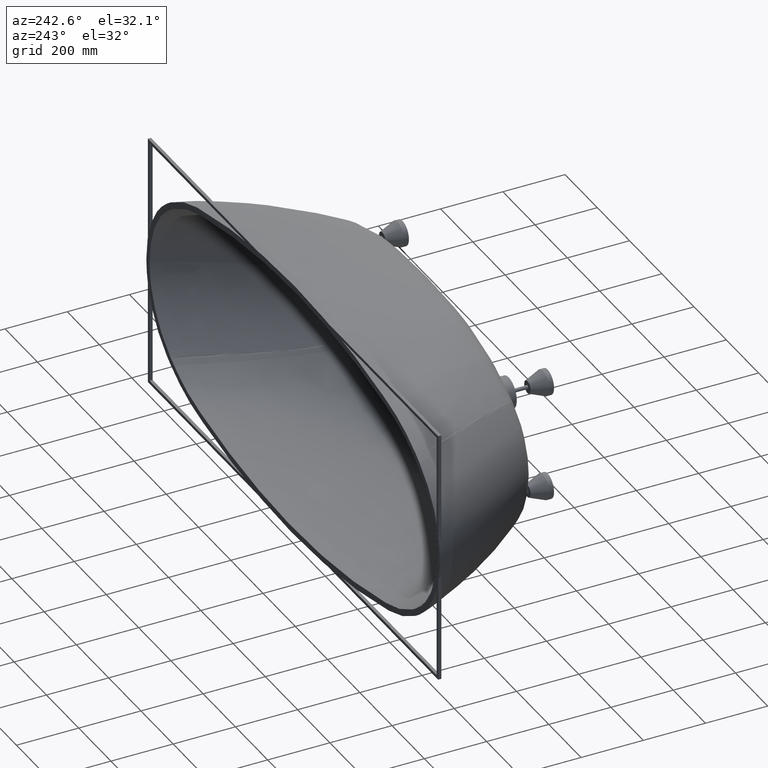
[diagram: clean part render]
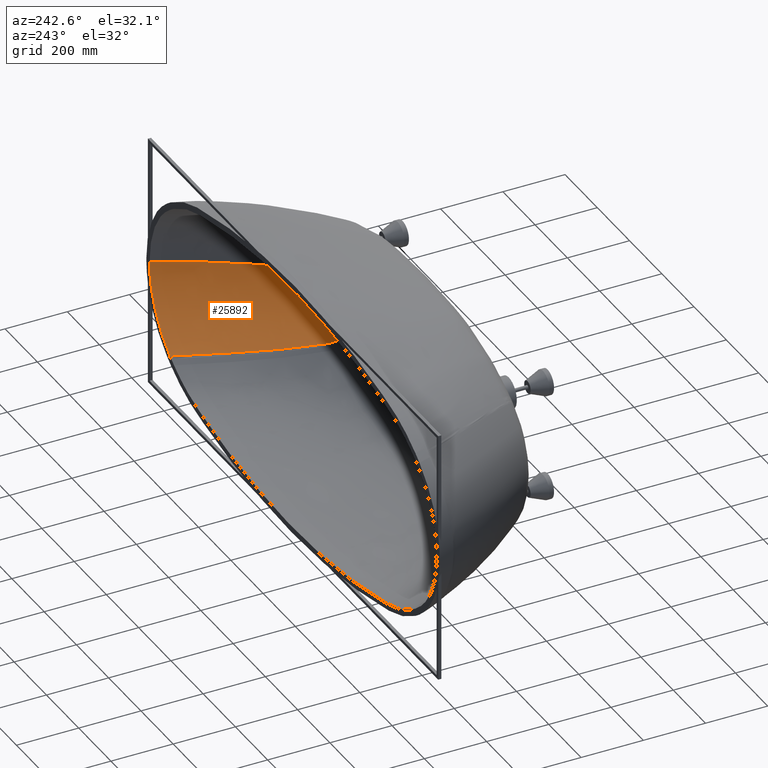
[diagram: same view with one face highlighted and labeled with its STEP entity id]
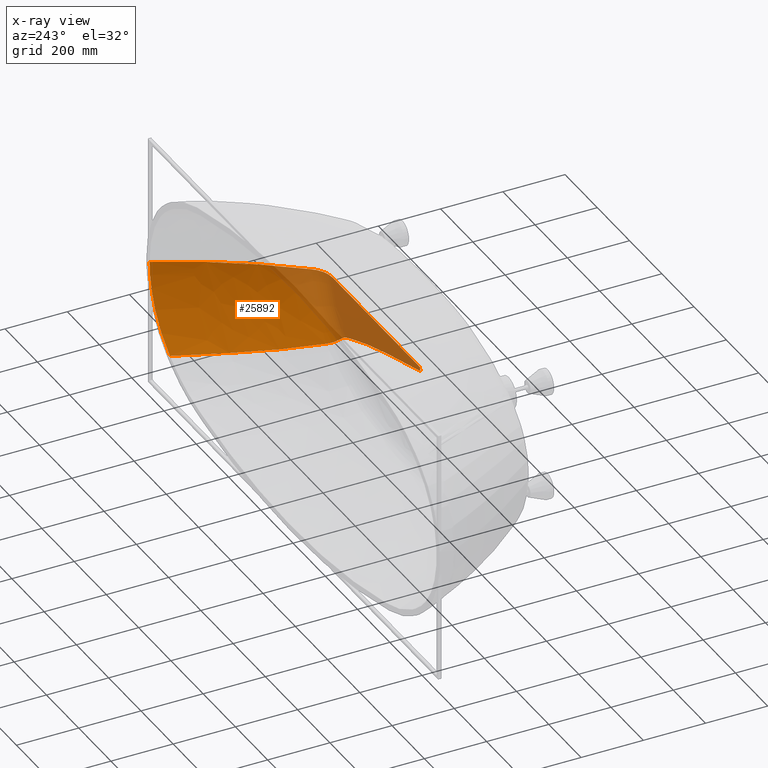
[diagram: x-ray of the same camera — body ghosted, the highlighted face saturated]
A machine part, auxiliary view. The second image highlights one B-rep face of the part: STEP entity #25892.
The next image is the same camera in x-ray: the body ghosted, the highlighted face saturated — about 25% of this face is hidden behind the body in this view.
In plain terms, the highlighted face is a freeform B-spline surface patch.
Its self-contained STEP definition (entity closure, byte-faithful):
#550 = CARTESIAN_POINT ( 'NONE',  ( 889.9999999999997726, 0.0000000000000000000, -7.813008401131620317 ) ) ;
#1199 = VERTEX_POINT ( 'NONE', #22775 ) ;
#1250 = CARTESIAN_POINT ( 'NONE',  ( 742.1609534083117978, -260.5229574180724512, -5.885049392251318068E-13 ) ) ;
#2315 = CARTESIAN_POINT ( 'NONE',  ( 22.46695528836873024, -424.9999999999999432, -1.194720606403177898 ) ) ;
#2352 = CARTESIAN_POINT ( 'NONE',  ( 604.6927582350691637, -419.6823909941625743, -2.745199900733297227E-13 ) ) ;
#2723 = CARTESIAN_POINT ( 'NONE',  ( 568.5184165091095565, -393.5598942334727894, -173.1428447770382775 ) ) ;
#4155 = CARTESIAN_POINT ( 'NONE',  ( 607.0794513948219446, -418.1109891597318438, -25.74454342284295194 ) ) ;
#4499 = CARTESIAN_POINT ( 'NONE',  ( 585.8839780074097234, -422.3329787176047603, -75.71974791608008104 ) ) ;
#5095 = CARTESIAN_POINT ( 'NONE',  ( 731.6243408592702053, -211.3113990529393220, -161.6191730751773719 ) ) ;
#5354 = CARTESIAN_POINT ( 'NONE',  ( 544.5121389570906558, -399.2590660802700313, -188.1106429836071356 ) ) ;
#5372 = CARTESIAN_POINT ( 'NONE',  ( 581.4375912778594966, -423.3838728085763705, -74.54260042421208254 ) ) ;
#6083 = CARTESIAN_POINT ( 'NONE',  ( 610.8382169708231686, -416.3741980403781895, -26.14063740771212352 ) ) ;
#6245 = CARTESIAN_POINT ( 'NONE',  ( 576.6412992635131332, -424.2276511171820061, -73.39429850229383590 ) ) ;
#6863 = CARTESIAN_POINT ( 'NONE',  ( 633.3468204824233680, -401.8672458092840429, -6.130813395000302535 ) ) ;
#7107 = CARTESIAN_POINT ( 'NONE',  ( 571.3360827767069168, -424.8210599999069359, -72.27558075873081123 ) ) ;
#7802 = CARTESIAN_POINT ( 'NONE',  ( 605.0999738649830988, -414.3860099885868635, -81.82765698950363742 ) ) ;
#7971 = CARTESIAN_POINT ( 'NONE',  ( 567.2880191858342869, -425.0000000000004547, -71.54847343157086925 ) ) ;
#8446 = CARTESIAN_POINT ( 'NONE',  ( 601.8286350277775227, -419.6815136360526139, -34.77230389997709636 ) ) ;
#8843 = CARTESIAN_POINT ( 'NONE',  ( 522.9144527306659711, -425.0000000000004547, -64.53291378857095140 ) ) ;
#9106 = CARTESIAN_POINT ( 'NONE',  ( 754.6629436554150061, -19.22118092676585022, -245.4380052979094557 ) ) ;
#9354 = CARTESIAN_POINT ( 'NONE',  ( 603.6992884566662951, -419.6820850897966011, -20.59518077207890485 ) ) ;
#9721 = CARTESIAN_POINT ( 'NONE',  ( 433.1755720916362975, -424.9999999999999432, -51.42779378559569636 ) ) ;
#9977 = CARTESIAN_POINT ( 'NONE',  ( 533.0658169171165355, -405.6264293052607854, -188.6186647234172256 ) ) ;
#10351 = CARTESIAN_POINT ( 'NONE',  ( 30.89896369505317608, -425.0000000000003411, -10.06399281711044047 ) ) ;
#10499 = CARTESIAN_POINT ( 'NONE',  ( 880.5734079690547560, -20.39839011936409108, 9.367506770274758310E-14 ) ) ;
#10595 = CARTESIAN_POINT ( 'NONE',  ( 288.1053347021986610, -425.0000000000001137, -32.79070458012962064 ) ) ;
#10858 = CARTESIAN_POINT ( 'NONE',  ( 454.1875000873624799, -425.0000000000001137, -139.3218411006128292 ) ) ;
#11013 = CARTESIAN_POINT ( 'NONE',  ( 535.1876299354520370, -421.1369254506012680, -150.5246223636109733 ) ) ;
#11387 = CARTESIAN_POINT ( 'NONE',  ( 626.5407800831256964, -407.6346563283105411, -4.397524011601205984E-13 ) ) ;
#11407 = CARTESIAN_POINT ( 'NONE',  ( 818.7503130136948357, -112.9188660872581522, -108.7606082393227922 ) ) ;
#11485 = CARTESIAN_POINT ( 'NONE',  ( 146.6610263868294055, -424.9999999999997726, -16.34263512884311709 ) ) ;
#12091 = CARTESIAN_POINT ( 'NONE',  ( 626.2563093234422240, -407.6281259592695392, -13.49476319090799947 ) ) ;
#12271 = CARTESIAN_POINT ( 'NONE',  ( 532.0358869680229645, -425.0000000000000568, 3.226864118656051386E-14 ) ) ;
#12367 = CARTESIAN_POINT ( 'NONE',  ( 61.93094572838794676, -425.0000000000000568, -7.614410849507206258 ) ) ;
#13184 = CARTESIAN_POINT ( 'NONE',  ( 612.3676016354260128, -416.3819779217574251, -3.230922474006803213E-13 ) ) ;
#13239 = CARTESIAN_POINT ( 'NONE',  ( 22.26716857177912345, -424.9999999999999432, -3.739079911027631820 ) ) ;
#13488 = CARTESIAN_POINT ( 'NONE',  ( 742.1609534083116841, -260.5229574180740997, -7.192766674008138850 ) ) ;
#13858 = CARTESIAN_POINT ( 'NONE',  ( 887.8996988289592309, 0.0000000000000000000, -35.81240038679592885 ) ) ;
#14554 = CARTESIAN_POINT ( 'NONE',  ( 741.8258980714191466, -260.5053571335968741, -16.14031569760735607 ) ) ;
#14791 = CARTESIAN_POINT ( 'NONE',  ( 541.3327662777909381, -411.4229621947719124, -172.8410498653929039 ) ) ;
#14817 = CARTESIAN_POINT ( 'NONE',  ( 517.3643112907934665, -421.1503002250229883, -165.3099669590468181 ) ) ;
#17464 = CARTESIAN_POINT ( 'NONE',  ( 608.5977907286596746, -418.1144126925555042, -5.621836656254521003 ) ) ;
#17807 = CARTESIAN_POINT ( 'NONE',  ( 521.6559440611529226, -422.4097920189624347, -156.5746591771366809 ) ) ;
#18193 = CARTESIAN_POINT ( 'NONE',  ( 877.7442128324414625, -20.36984941273554739, -41.47086964043676716 ) ) ;
#18534 = CARTESIAN_POINT ( 'NONE',  ( 604.4202248330600469, -419.6823068440052111, -12.41633372556329462 ) ) ;
#18688 = CARTESIAN_POINT ( 'NONE',  ( 517.7807017661456257, -423.4557901567945351, -153.9407233803571842 ) ) ;
#19549 = CARTESIAN_POINT ( 'NONE',  ( 513.5867296306764729, -424.2741099264814579, -151.3739413454840133 ) ) ;
#20255 = CARTESIAN_POINT ( 'NONE',  ( 609.4604288050649075, -416.3672394330349675, -35.86550624852029756 ) ) ;
#20419 = CARTESIAN_POINT ( 'NONE',  ( 508.9267604374355756, -424.8357574338874088, -148.8760096825899666 ) ) ;
#20790 = CARTESIAN_POINT ( 'NONE',  ( 756.5920398574542105, -56.66415962880429902, -229.7136861765593778 ) ) ;
#21037 = CARTESIAN_POINT ( 'NONE',  ( 547.3554797882446792, -395.6177623110040145, -189.6644919033969643 ) ) ;
#21284 = CARTESIAN_POINT ( 'NONE',  ( 505.3501641792956889, -425.0000000000006821, -147.2542387853335697 ) ) ;
#21873 = CARTESIAN_POINT ( 'NONE',  ( 835.1985013818906509, -19.95022826922035009, -170.3465702110891584 ) ) ;
#22160 = CARTESIAN_POINT ( 'NONE',  ( 465.9553905360119188, -425.0000000000006821, -131.6146692688825226 ) ) ;
#22775 = CARTESIAN_POINT ( 'NONE',  ( 30.18770409776147901, -425.0000000000000000, -11.99474317903256626 ) ) ;
#23029 = CARTESIAN_POINT ( 'NONE',  ( 386.9772987131114519, -425.0000000000001137, -104.1604783138931793 ) ) ;
#23086 = CARTESIAN_POINT ( 'NONE',  ( 582.5155249339836701, -414.1922932193824067, -125.9482060397161831 ) ) ;
#23288 = CARTESIAN_POINT ( 'NONE',  ( 541.4533807291783205, -395.4375403903129609, -194.1291863807538220 ) ) ;
#23907 = CARTESIAN_POINT ( 'NONE',  ( 259.5658295238316100, -425.0000000000003979, -67.72177198379964125 ) ) ;
#24097 = CARTESIAN_POINT ( 'NONE',  ( 625.3435831102245857, -398.0961087535347360, -87.37890494570211786 ) ) ;
#24169 = CARTESIAN_POINT ( 'NONE',  ( 500.5312032346741375, -424.2833750417757983, -160.5738072706150774 ) ) ;
#24550 = CARTESIAN_POINT ( 'NONE',  ( 32.30973494028206972, -425.0000000000001137, -4.035617031001397237 ) ) ;
#24700 = CARTESIAN_POINT ( 'NONE',  ( 636.7542890299514511, -398.4740128357382218, -5.251875323519783478E-13 ) ) ;
#24720 = CARTESIAN_POINT ( 'NONE',  ( 830.1899798702447697, -113.3991055052842825, -40.85065626764622237 ) ) ;
#24798 = CARTESIAN_POINT ( 'NONE',  ( 134.2924447026792336, -424.9999999999998295, -35.89073695144139720 ) ) ;
#25581 = CARTESIAN_POINT ( 'NONE',  ( 586.8775769993812901, -424.2197302004688595, -1.140580685454750665E-13 ) ) ;
#25679 = CARTESIAN_POINT ( 'NONE',  ( 57.51238672651712136, -425.0000000000001137, -17.64922770947787711 ) ) ;
#25892 = ADVANCED_FACE ( 'NONE', ( #147237 ), #128852, .T. ) ;
#26183 = VERTEX_POINT ( 'NONE', #97043 ) ;
#26480 = CARTESIAN_POINT ( 'NONE',  ( 803.5349000565435063, -164.6850933728977679, -2.550043509685906429E-13 ) ) ;
#26563 = CARTESIAN_POINT ( 'NONE',  ( 20.76493168872015005, -425.0000000000001137, -8.633719911346696918 ) ) ;
#26813 = CARTESIAN_POINT ( 'NONE',  ( 589.6048540223811187, -347.3832296305083105, -195.7248192990210498 ) ) ;
#26816 = CARTESIAN_POINT ( 'NONE',  ( 613.9372683676277802, -414.4617678680138511, -30.76974567980781572 ) ) ;
#27020 = CARTESIAN_POINT ( 'NONE',  ( 770.7516736604111429, -213.3718894115311571, -39.36743026726939121 ) ) ;
#27186 = CARTESIAN_POINT ( 'NONE',  ( 875.2561198878230471, 0.0000000000000000000, -110.6219516989343390 ) ) ;
#27613 = CARTESIAN_POINT ( 'NONE',  ( 541.6861517262809684, -402.6215480962127913, -186.3283079783399785 ) ) ;
#30728 = B_SPLINE_CURVE_WITH_KNOTS ( 'NONE', 3,
 ( #130708, #9106, #63226, #117391, #171572, #49907, #104057, #158223, #36598, #90717, #144912, #23288, #77412, #131581, #9977, #64098, #118274, #172452, #50776, #104936, #159108, #37481, #91598, #145793, #24169, #78293, #132464, #10858, #64983, #119158, #173330, #51671, #105837 ),
 .UNSPECIFIED., .F., .F.,
 ( 4, 1, 1, 1, 1, 1, 1, 1, 2, 1, 1, 1, 1, 1, 1, 1, 1, 1, 1, 1, 1, 1, 1, 1, 2, 1, 1, 1, 4 ),
 ( 0.0000000000000000000, 0.05994086368778128032, 0.1198817273755625606, 0.1798225910633438340, 0.2397634547511251213, 0.2997043184389063808, 0.3596451821266876681, 0.4195860458144689553, 0.4795269095022502426, 0.4853010234369131148, 0.4910751373715758761, 0.4968492513062386373, 0.5026233652409013430, 0.5083974791755642153, 0.5141715931102269765, 0.5199457070448898488, 0.5257198209795526100, 0.5314939349142153713, 0.5372680488488781325, 0.5430421627835408938, 0.5488162767182037660, 0.5545903906528666383, 0.5603645045875293995, 0.5661386185221921608, 0.5719127324568549220, 0.6789345493426411915, 0.7859563662284274610, 0.8929781831142136195, 0.9904148661195237846 ),
 .UNSPECIFIED. ) ;
#30774 = CARTESIAN_POINT ( 'NONE',  ( 520.7480526106349998, -419.6580489544126635, -168.1852738272401382 ) ) ;
#31116 = CARTESIAN_POINT ( 'NONE',  ( 600.6198215415478217, -421.0857550593216843, -2.376571162088225719E-13 ) ) ;
#31371 = CARTESIAN_POINT ( 'NONE',  ( 709.7931752842318929, -306.1392096454704301, -6.930125930304290804 ) ) ;
#31506 = CARTESIAN_POINT ( 'NONE',  ( 623.5540909002511398, -407.5665700356749994, -37.81970106279426602 ) ) ;
#31995 = CARTESIAN_POINT ( 'NONE',  ( 596.3384942679665528, -422.3198825627165434, -1.856154119295183591E-13 ) ) ;
#32858 = CARTESIAN_POINT ( 'NONE',  ( 591.7858414175602775, -423.3716113810008892, -1.361757928641793569E-13 ) ) ;
#33480 = CARTESIAN_POINT ( 'NONE',  ( 538.6477861280450270, -399.0944967764922353, -192.5343263819627566 ) ) ;
#33563 = CARTESIAN_POINT ( 'NONE',  ( 601.5289581477208003, -416.3278752998928667, -80.62157361191168548 ) ) ;
#33723 = CARTESIAN_POINT ( 'NONE',  ( 586.8775769993812901, -424.2197302004688595, -1.140580685454750665E-13 ) ) ;
#33977 = CARTESIAN_POINT ( 'NONE',  ( 772.0850604735544493, -213.4437027725822702, -27.56766390325527993 ) ) ;
#34094 = CARTESIAN_POINT ( 'NONE',  ( 803.1806998770780410, -164.6667762298227160, -16.97239111492600472 ) ) ;
#34342 = CARTESIAN_POINT ( 'NONE',  ( 627.8064169713665024, -404.8385384633936610, -32.29704374598685490 ) ) ;
#34559 = CARTESIAN_POINT ( 'NONE',  ( 32.50000000001039524, -425.0000000000002274, 5.089849255042330080E-15 ) ) ;
#34591 = CARTESIAN_POINT ( 'NONE',  ( 581.4528246274917365, -424.8185541855690417, -5.724587470723463412E-14 ) ) ;
#34962 = CARTESIAN_POINT ( 'NONE',  ( 800.8723393725767892, -164.5485269617993822, -40.22250256330844564 ) ) ;
#35459 = CARTESIAN_POINT ( 'NONE',  ( 577.3180290801075216, -425.0000000000000568, -3.465067594662047174E-14 ) ) ;
#35515 = CARTESIAN_POINT ( 'NONE',  ( 618.5746015112140412, -412.3858850174781878, -21.85430122351743165 ) ) ;
#36334 = CARTESIAN_POINT ( 'NONE',  ( 532.0358869680229645, -425.0000000000000568, 3.226864118656051386E-14 ) ) ;
#36392 = CARTESIAN_POINT ( 'NONE',  ( 619.3158370787027707, -412.3956778873180156, -13.17243776808596856 ) ) ;
#36598 = CARTESIAN_POINT ( 'NONE',  ( 574.1802162508204219, -346.8158871225878102, -208.1740881903860441 ) ) ;
#37141 = CARTESIAN_POINT ( 'NONE',  ( 816.9430219003472757, -58.11417081261243567, -169.5644468792151258 ) ) ;
#37217 = CARTESIAN_POINT ( 'NONE',  ( 440.4492248278466491, -424.9999999999996021, 5.963111948670274387E-14 ) ) ;
#37481 = CARTESIAN_POINT ( 'NONE',  ( 511.8702590839548066, -421.1543728557786608, -169.0794472003104261 ) ) ;
#37862 = CARTESIAN_POINT ( 'NONE',  ( 31.88218392002220014, -425.0000000000000568, -6.236227272414957667 ) ) ;
#37879 = B_SPLINE_CURVE_WITH_KNOTS ( 'NONE', 3,
 ( #77790, #131954, #10351, #64476, #118658, #172830, #51157, #105323, #159491, #37862, #91982, #146178, #24550, #78675, #132849 ),
 .UNSPECIFIED., .F., .F.,
 ( 4, 2, 2, 1, 1, 1, 2, 2, 4 ),
 ( 0.0000000000000000000, 0.2499999999999999445, 0.3750000000000002220, 0.4374999999999999445, 0.4687500000000001110, 0.4843750000000002776, 0.4921875000000003886, 0.5000000000000004441, 1.000000000000000000 ),
 .UNSPECIFIED. ) ;
#38010 = CARTESIAN_POINT ( 'NONE',  ( 676.0169740054551539, -350.7131320821338250, -6.899862625697750218E-13 ) ) ;
#38029 = CARTESIAN_POINT ( 'NONE',  ( 799.8032330269845716, -164.4941169738871167, -47.58952087079030946 ) ) ;
#38107 = CARTESIAN_POINT ( 'NONE',  ( 292.5380542394628378, -424.9999999999998295, 5.898059818321144121E-14 ) ) ;
#38905 = CARTESIAN_POINT ( 'NONE',  ( 600.6198215415478217, -421.0857550593216843, -2.376571162088225719E-13 ) ) ;
#38923 = CARTESIAN_POINT ( 'NONE',  ( 889.6218232531010699, 0.0000000000000000000, -17.53117531114953209 ) ) ;
#39003 = CARTESIAN_POINT ( 'NONE',  ( 148.5769081895095667, -424.9999999999997726, 2.103352214621878602E-14 ) ) ;
#39253 = CARTESIAN_POINT ( 'NONE',  ( 511.8702590839548066, -421.1543728557786608, -169.0794472003104261 ) ) ;
#39607 = CARTESIAN_POINT ( 'NONE',  ( 611.9995744146991683, -409.9292747576186002, -84.05642408873781335 ) ) ;
#39705 = CARTESIAN_POINT ( 'NONE',  ( 615.7480350061266563, -414.4776379743756252, -12.99190751760226448 ) ) ;
#39805 = CARTESIAN_POINT ( 'NONE',  ( 847.2375928071501221, -58.89849752313223519, -109.9278137956628996 ) ) ;
#39882 = CARTESIAN_POINT ( 'NONE',  ( 62.62135983265346084, -425.0000000000001705, 6.830473686658677934E-15 ) ) ;
#40505 = CARTESIAN_POINT ( 'NONE',  ( 782.5614730565411037, 0.0000000000000000000, -231.2520088400853524 ) ) ;
#40696 = CARTESIAN_POINT ( 'NONE',  ( 518.4032822138713072, -417.9231159415956540, -175.0295410734784696 ) ) ;
#40930 = CARTESIAN_POINT ( 'NONE',  ( 634.5832855296775961, -398.4003954448822924, -32.84451259594668926 ) ) ;
#41802 = CARTESIAN_POINT ( 'NONE',  ( 601.8570230804409675, -397.3180321335764802, -134.6400680118282480 ) ) ;
#42951 = CARTESIAN_POINT ( 'NONE',  ( 660.3776879897542358, -256.4867196667782423, -201.1342560729154627 ) ) ;
#43091 = CARTESIAN_POINT ( 'NONE',  ( 626.5407800831255827, -407.6346563283111664, -6.015142029899807063 ) ) ;
#43142 = CARTESIAN_POINT ( 'NONE',  ( 22.49999999999988276, -425.0000000000000568, 4.391018798566292958E-15 ) ) ;
#43188 = CARTESIAN_POINT ( 'NONE',  ( 527.3882758105128232, -411.2565995768030689, -183.6937106233603174 ) ) ;
#43825 = CARTESIAN_POINT ( 'NONE',  ( 672.7752630593931826, -350.5810011239591404, -41.59077718536266843 ) ) ;
#44444 = CARTESIAN_POINT ( 'NONE',  ( 599.6340399345741616, -421.0865661929894941, -20.27562607281890905 ) ) ;
#44838 = CARTESIAN_POINT ( 'NONE',  ( 554.6494537494223778, -408.9533158292018697, -165.4650702254886596 ) ) ;
#45331 = CARTESIAN_POINT ( 'NONE',  ( 595.3607062282909510, -422.3211264677487407, -19.96131984355868738 ) ) ;
#45804 = CARTESIAN_POINT ( 'NONE',  ( 603.1858116232364182, -419.6819278705579563, -25.34660094286885013 ) ) ;
#45812 = CARTESIAN_POINT ( 'NONE',  ( 613.0990029953896965, -414.4544655623866447, -36.39907973715754252 ) ) ;
#46198 = CARTESIAN_POINT ( 'NONE',  ( 590.8164206007029406, -423.3727760015779040, -19.65426219543595465 ) ) ;
#46783 = CARTESIAN_POINT ( 'NONE',  ( 861.6764684313017142, -59.27943721221214446, -7.764697007903015979 ) ) ;
#46899 = CARTESIAN_POINT ( 'NONE',  ( 535.2270184974133826, -416.0105454398641314, -167.5608553019726799 ) ) ;
#47057 = CARTESIAN_POINT ( 'NONE',  ( 585.9169881405208571, -424.2204825486383584, -19.35464425425046642 ) ) ;
#47650 = CARTESIAN_POINT ( 'NONE',  ( 688.8430212571240645, -209.2013242017327457, -206.9271436486632467 ) ) ;
#47686 = CARTESIAN_POINT ( 'NONE',  ( 618.6947650433361332, -404.5961059790803915, -85.91631998307366302 ) ) ;
#47930 = CARTESIAN_POINT ( 'NONE',  ( 580.5017054015050917, -424.8187921939837679, -19.06265714580184323 ) ) ;
#48794 = CARTESIAN_POINT ( 'NONE',  ( 576.3738346605395009, -425.0000000000000000, -18.87282247907329236 ) ) ;
#49648 = CARTESIAN_POINT ( 'NONE',  ( 531.1648479860959924, -425.0000000000000000, -17.04090275063628113 ) ) ;
#49907 = CARTESIAN_POINT ( 'NONE',  ( 658.4731281993256289, -207.7315150473311007, -233.1707577283375201 ) ) ;
#50515 = CARTESIAN_POINT ( 'NONE',  ( 439.7405845900744339, -424.9999999999995453, -13.58993164141370258 ) ) ;
#50776 = CARTESIAN_POINT ( 'NONE',  ( 521.4839849449388112, -415.9472614731822659, -178.0067493062282153 ) ) ;
#51157 = CARTESIAN_POINT ( 'NONE',  ( 31.72689247702175663, -425.0000000000003411, -6.982934607847166575 ) ) ;
#51309 = CARTESIAN_POINT ( 'NONE',  ( 773.3433091981349889, -213.5120345203855265, -4.605690828718422836E-13 ) ) ;
#51328 = CARTESIAN_POINT ( 'NONE',  ( 675.9663322207704823, -208.5730157610316553, -219.2395168965364576 ) ) ;
#51407 = CARTESIAN_POINT ( 'NONE',  ( 292.1017538082996907, -424.9999999999998863, -8.640412462146304762 ) ) ;
#51671 = CARTESIAN_POINT ( 'NONE',  ( 63.31793199200877353, -425.0000000000000568, -20.90437426964390255 ) ) ;
#52022 = CARTESIAN_POINT ( 'NONE',  ( 629.9511447816461214, -404.8971911993211847, -4.601354020028480818E-13 ) ) ;
#52200 = CARTESIAN_POINT ( 'NONE',  ( 612.3676016354260128, -416.3819779217574251, -3.230922474006803213E-13 ) ) ;
#52296 = CARTESIAN_POINT ( 'NONE',  ( 148.3911079814282346, -424.9999999999997158, -4.268510152399040081 ) ) ;
#52554 = CARTESIAN_POINT ( 'NONE',  ( 740.9418886160283364, -260.4589765054832355, -26.78785623342234956 ) ) ;
#52680 = CARTESIAN_POINT ( 'NONE',  ( 533.0658169171165355, -405.6264293052607854, -188.6186647234172256 ) ) ;
#53082 = CARTESIAN_POINT ( 'NONE',  ( 69.73813508375620529, -425.0000000000001705, 8.022529115016779057E-15 ) ) ;
#53101 = CARTESIAN_POINT ( 'NONE',  ( 763.1520700604693275, 0.0000000000000000000, -245.9321533621682363 ) ) ;
#53179 = CARTESIAN_POINT ( 'NONE',  ( 62.55670424644628724, -425.0000000000000568, -1.972476568528758634 ) ) ;
#53992 = CARTESIAN_POINT ( 'NONE',  ( 523.9868883457270385, -417.9344698624695411, -171.0917854156082569 ) ) ;
#54296 = CARTESIAN_POINT ( 'NONE',  ( 616.6486798588988449, -412.3606490944637244, -36.90920604521760851 ) ) ;
#54493 = CARTESIAN_POINT ( 'NONE',  ( 640.6341684389320790, -379.5264237595847021, -89.92439708075299620 ) ) ;
#54627 = CARTESIAN_POINT ( 'NONE',  ( 711.6965103376680872, -108.7229897645688794, -241.7294018558230277 ) ) ;
#54640 = CARTESIAN_POINT ( 'NONE',  ( 620.1278482135928698, -410.0715213375021904, -37.38532890152461619 ) ) ;
#54663 = CARTESIAN_POINT ( 'NONE',  ( 889.9999999999997726, 0.0000000000000000000, 5.030698080332740574E-14 ) ) ;
#55360 = CARTESIAN_POINT ( 'NONE',  ( 771.4336053293262694, -213.4085837400958496, -33.93571396602765589 ) ) ;
#56237 = CARTESIAN_POINT ( 'NONE',  ( 649.2578428918619693, -379.8324625487778121, -39.98831966759213685 ) ) ;
#56431 = CARTESIAN_POINT ( 'NONE',  ( 22.47822624222893495, -424.9999999999999432, -0.9688558264257705055 ) ) ;
#58122 = CARTESIAN_POINT ( 'NONE',  ( 624.4094521470756263, -407.5859681098792748, -31.96849327800740070 ) ) ;
#58611 = CARTESIAN_POINT ( 'NONE',  ( 593.5205351759256018, -422.3234501815206841, -33.69645820128976510 ) ) ;
#58873 = CARTESIAN_POINT ( 'NONE',  ( 569.2269403296779728, -377.0593239307403337, -188.0236669823008810 ) ) ;
#59491 = CARTESIAN_POINT ( 'NONE',  ( 588.9925127980235402, -423.3749516056666380, -33.17528823664894588 ) ) ;
#59747 = CARTESIAN_POINT ( 'NONE',  ( 708.0103117111566462, -306.0547059743462910, -31.77138446391862558 ) ) ;
#59908 = B_SPLINE_CURVE_WITH_KNOTS ( 'NONE', 3,
 ( #132100, #10499, #64625, #118803, #172975, #51309, #105477, #159641, #38010, #92133, #146329, #24700, #78825, #132999, #11387, #65514, #119687, #173859, #52200, #106364, #160536, #38905, #93034, #147219, #25581, #79706, #133890, #12271, #66405, #120571, #174741, #53082, #107251 ),
 .UNSPECIFIED., .F., .F.,
 ( 4, 1, 1, 1, 1, 1, 1, 1, 2, 1, 1, 1, 1, 1, 1, 1, 1, 1, 1, 1, 1, 1, 1, 1, 2, 1, 1, 1, 4 ),
 ( 0.0000000000000000000, 0.05994086368778128032, 0.1198817273755625606, 0.1798225910633438340, 0.2397634547511251213, 0.2997043184389063808, 0.3596451821266876681, 0.4195860458144689553, 0.4795269095022502426, 0.4853010234369130593, 0.4910751373715758761, 0.4968492513062386373, 0.5026233652409013430, 0.5083974791755642153, 0.5141715931102269765, 0.5199457070448898488, 0.5257198209795526100, 0.5314939349142153713, 0.5372680488488781325, 0.5430421627835408938, 0.5488162767182037660, 0.5545903906528666383, 0.5603645045875293995, 0.5661386185221921608, 0.5719127324568549220, 0.6789345493426411915, 0.7859563662284274610, 0.8929781831142136195, 0.9911602972740303219 ),
 .UNSPECIFIED. ) ;
#60199 = CARTESIAN_POINT ( 'NONE',  ( 611.3595029764451283, -416.3768391215389784, -21.23929087614614986 ) ) ;
#60359 = CARTESIAN_POINT ( 'NONE',  ( 584.1102401595677520, -424.2218879950010546, -32.66674389464135686 ) ) ;
#60988 = CARTESIAN_POINT ( 'NONE',  ( 560.5921963985729235, -403.0930971710218387, -169.3265976698789075 ) ) ;
#61232 = CARTESIAN_POINT ( 'NONE',  ( 578.7133404397632148, -424.8192368126780707, -32.17114947913414369 ) ) ;
#61423 = CARTESIAN_POINT ( 'NONE',  ( 626.9455833007012870, -404.8151703846168061, -38.20900269541999705 ) ) ;
#61492 = CARTESIAN_POINT ( 'NONE',  ( 670.7826012152611383, -304.3416226646732525, -151.2420064671966884 ) ) ;
#62102 = CARTESIAN_POINT ( 'NONE',  ( 574.5988928120389119, -425.0000000000000568, -31.84893789323124835 ) ) ;
#62359 = CARTESIAN_POINT ( 'NONE',  ( 631.0451753382188826, -255.1104965486242122, -226.6659844089797957 ) ) ;
#62486 = CARTESIAN_POINT ( 'NONE',  ( 592.3164081755080588, -406.8701271827550272, -130.9831180693238366 ) ) ;
#62969 = CARTESIAN_POINT ( 'NONE',  ( 529.5314941390948889, -425.0000000000000568, -28.73955555964084141 ) ) ;
#63226 = CARTESIAN_POINT ( 'NONE',  ( 737.6175872662014399, -56.21857355995337713, -244.2741881949994251 ) ) ;
#63815 = CARTESIAN_POINT ( 'NONE',  ( 555.8702810382476400, -395.8795757025147282, -182.5575216263245579 ) ) ;
#63837 = CARTESIAN_POINT ( 'NONE',  ( 438.4161668671581538, -424.9999999999996021, -22.90633761930751078 ) ) ;
#64098 = CARTESIAN_POINT ( 'NONE',  ( 530.2474019291332752, -408.5538852651012007, -186.2756924335419626 ) ) ;
#64215 = CARTESIAN_POINT ( 'NONE',  ( 703.3683658739562361, -159.8721957139893277, -223.9042928840680418 ) ) ;
#64476 = CARTESIAN_POINT ( 'NONE',  ( 31.32898771742711475, -425.0000000000002274, -8.591324550392180015 ) ) ;
#64625 = CARTESIAN_POINT ( 'NONE',  ( 861.6764684313014868, -59.27943721221124207, 4.119968255444916849E-14 ) ) ;
#64720 = CARTESIAN_POINT ( 'NONE',  ( 291.2873608685948170, -424.9999999999999432, -14.57717926659432628 ) ) ;
#64983 = CARTESIAN_POINT ( 'NONE',  ( 377.4490720477825221, -424.9999999999997158, -110.1344720584576606 ) ) ;
#65514 = CARTESIAN_POINT ( 'NONE',  ( 623.0953213378229520, -410.1247804707803652, -4.237062090073351328E-13 ) ) ;
#65613 = CARTESIAN_POINT ( 'NONE',  ( 148.0430040173553436, -424.9999999999997158, -7.227054756478983322 ) ) ;
#65871 = CARTESIAN_POINT ( 'NONE',  ( 631.1336862456000745, -302.6180100368005128, -193.7858482065364853 ) ) ;
#66405 = CARTESIAN_POINT ( 'NONE',  ( 440.4492248278466491, -424.9999999999996021, 5.963111948670274387E-14 ) ) ;
#66424 = CARTESIAN_POINT ( 'NONE',  ( 762.5611190833722048, -19.29105111513673876, -239.7917927457256155 ) ) ;
#66501 = CARTESIAN_POINT ( 'NONE',  ( 62.43464062618787835, -425.0000000000000568, -3.351401166014046584 ) ) ;
#66755 = CARTESIAN_POINT ( 'NONE',  ( 619.1855948364793676, -302.1047768868143066, -205.3239577786494863 ) ) ;
#67221 = CARTESIAN_POINT ( 'NONE',  ( 594.0391373388312104, -419.6791703536375735, -78.15064005053348239 ) ) ;
#67326 = CARTESIAN_POINT ( 'NONE',  ( 605.7118084175343711, -418.1079270281279037, -35.32018326023924715 ) ) ;
#67379 = CARTESIAN_POINT ( 'NONE',  ( 22.43707666064431550, -424.9999999999999432, -1.646018210239530211 ) ) ;
#67995 = CARTESIAN_POINT ( 'NONE',  ( 888.6151156526157138, 0.0000000000000000000, -29.09297547376572979 ) ) ;
#70170 = CARTESIAN_POINT ( 'NONE',  ( 630.3226643280903545, -401.7732394046861941, -38.55390613394162358 ) ) ;
#70443 = CARTESIAN_POINT ( 'NONE',  ( 738.6402047809017404, -260.3394550598202954, -45.26196154105999625 ) ) ;
#70678 = CARTESIAN_POINT ( 'NONE',  ( 548.5316792968800428, -413.9163338212964049, -160.8058318462610714 ) ) ;
#70798 = CARTESIAN_POINT ( 'NONE',  ( 889.9999999999997726, 0.0000000000000000000, 5.030698080332740574E-14 ) ) ;
#71323 = CARTESIAN_POINT ( 'NONE',  ( 759.7570088740420715, -212.7926201521055702, -104.7897467710498773 ) ) ;
#71598 = CARTESIAN_POINT ( 'NONE',  ( 608.3231235218843267, -418.1137906322177287, -12.61016603781867929 ) ) ;
#71943 = CARTESIAN_POINT ( 'NONE',  ( 531.4680848250517329, -422.3983543482409573, -147.9984011233997876 ) ) ;
#72329 = CARTESIAN_POINT ( 'NONE',  ( 557.6343553267309971, -406.1370599633456777, -167.5064206005946232 ) ) ;
#72816 = CARTESIAN_POINT ( 'NONE',  ( 527.5030265065532831, -423.4450815043405782, -145.5329172574808183 ) ) ;
#73079 = CARTESIAN_POINT ( 'NONE',  ( 574.1802162508204219, -346.8158871225878102, -208.1740881903860441 ) ) ;
#73205 = CARTESIAN_POINT ( 'NONE',  ( 621.5344966555870769, -410.0966670225793678, -27.24466662352207535 ) ) ;
#73412 = CARTESIAN_POINT ( 'NONE',  ( 875.2561198878230471, 0.0000000000000000000, -110.6219516989343390 ) ) ;
#73668 = CARTESIAN_POINT ( 'NONE',  ( 543.3574728368646447, -392.7630439504369519, -195.0529145210560671 ) ) ;
#73686 = CARTESIAN_POINT ( 'NONE',  ( 523.2143802474073482, -424.2671921068658776, -143.1297492497123471 ) ) ;
#73740 = CARTESIAN_POINT ( 'NONE',  ( 614.4866527211954690, -414.4665668185430718, -26.52821093751743220 ) ) ;
#73977 = ORIENTED_EDGE ( 'NONE', *, *, #98778, .T. ) ;
#74395 = CARTESIAN_POINT ( 'NONE',  ( 527.1103693707027560, -415.9730629367974757, -173.9846884087489229 ) ) ;
#74556 = CARTESIAN_POINT ( 'NONE',  ( 518.4530603259942154, -424.8335689534116000, -140.7904755839525706 ) ) ;
#74743 = CARTESIAN_POINT ( 'NONE',  ( 639.0582087821512687, -395.8969260360127009, -5.568462357885550773E-13 ) ) ;
#75416 = CARTESIAN_POINT ( 'NONE',  ( 514.8024832587609581, -425.0000000000008527, -139.2713402572025245 ) ) ;
#75472 = CARTESIAN_POINT ( 'NONE',  ( 533.0970458768437084, -411.3244271682057160, -179.5113078608404749 ) ) ;
#76040 = CARTESIAN_POINT ( 'NONE',  ( 636.7542890299513374, -398.4740128357391313, -6.178702517341148948 ) ) ;
#76285 = CARTESIAN_POINT ( 'NONE',  ( 474.6271650035608332, -425.0000000000008527, -124.6197525012813969 ) ) ;
#76870 = CARTESIAN_POINT ( 'NONE',  ( 857.7688393185142104, -59.17566266085173510, -48.84622630021305412 ) ) ;
#77153 = CARTESIAN_POINT ( 'NONE',  ( 393.9909943433050330, -425.0000000000003411, -98.69670783007863690 ) ) ;
#77412 = CARTESIAN_POINT ( 'NONE',  ( 538.6477861280450270, -399.0944967764922353, -192.5343263819627566 ) ) ;
#77790 = CARTESIAN_POINT ( 'NONE',  ( 30.18770409776147901, -425.0000000000000000, -11.99474317903256626 ) ) ;
#78011 = CARTESIAN_POINT ( 'NONE',  ( 650.1531272418956178, -379.8651083750916087, -33.79922489512288308 ) ) ;
#78033 = CARTESIAN_POINT ( 'NONE',  ( 263.9006163656904960, -425.0000000000005684, -63.97912284619562939 ) ) ;
#78293 = CARTESIAN_POINT ( 'NONE',  ( 496.0076081261507852, -424.8386884909332935, -157.8860728802272604 ) ) ;
#78631 = CARTESIAN_POINT ( 'NONE',  ( 861.3063262537602895, -59.26948387077928260, -17.42266110409163105 ) ) ;
#78675 = CARTESIAN_POINT ( 'NONE',  ( 32.49994552268938719, -425.0000000000002274, -1.989145828661287529 ) ) ;
#78825 = CARTESIAN_POINT ( 'NONE',  ( 633.3468204824234817, -401.8672458092832471, -5.121771062821522946E-13 ) ) ;
#78845 = CARTESIAN_POINT ( 'NONE',  ( 692.7262159121952436, -159.3865099970624044, -232.6322331194323283 ) ) ;
#78922 = CARTESIAN_POINT ( 'NONE',  ( 136.1858288347052905, -424.9999999999999432, -33.62327971383198388 ) ) ;
#79706 = CARTESIAN_POINT ( 'NONE',  ( 581.4528246274917365, -424.8185541855690417, -5.724587470723463412E-14 ) ) ;
#79802 = CARTESIAN_POINT ( 'NONE',  ( 58.19718965647952302, -425.0000000000002274, -16.42124437649054158 ) ) ;
#80180 = CARTESIAN_POINT ( 'NONE',  ( 615.3637921961359325, -407.3847224976429970, -85.03751138983324154 ) ) ;
#80623 = CARTESIAN_POINT ( 'NONE',  ( 597.8501069828089385, -418.0906048614626798, -79.38893722528884211 ) ) ;
#80678 = CARTESIAN_POINT ( 'NONE',  ( 20.99856383850225683, -425.0000000000002274, -8.037674234795831651 ) ) ;
#81296 = CARTESIAN_POINT ( 'NONE',  ( 886.0064480515453624, 0.0000000000000000000, -49.15162373814861496 ) ) ;
#81789 = CARTESIAN_POINT ( 'NONE',  ( 739.6493461295547149, -260.3917356617486121, -38.25439908200772265 ) ) ;
#82127 = CARTESIAN_POINT ( 'NONE',  ( 754.6629436554150061, -19.22118092676585022, -245.4380052979094557 ) ) ;
#82455 = CARTESIAN_POINT ( 'NONE',  ( 604.6927582350692774, -419.6823909941625743, -5.535663791767843733 ) ) ;
#82861 = CARTESIAN_POINT ( 'NONE',  ( 773.3433091981349889, -213.5120345203855265, -4.605690828718422836E-13 ) ) ;
#82996 = CARTESIAN_POINT ( 'NONE',  ( 760.7303482301032318, -162.5406525830496776, -165.1537064312949781 ) ) ;
#84903 = CARTESIAN_POINT ( 'NONE',  ( 608.5977907286596746, -418.1144126925554474, -2.979387569990166185E-13 ) ) ;
#85246 = CARTESIAN_POINT ( 'NONE',  ( 508.3522299370732753, -422.4251106227746391, -166.1723355703528284 ) ) ;
#85505 = CARTESIAN_POINT ( 'NONE',  ( 602.9802361856766311, -301.4173978321475715, -218.3928744068650190 ) ) ;
#85634 = CARTESIAN_POINT ( 'NONE',  ( 886.0064480515453624, 0.0000000000000000000, -49.15162373814861496 ) ) ;
#86128 = CARTESIAN_POINT ( 'NONE',  ( 504.5978153206572756, -423.4701323780649318, -163.3365085472223655 ) ) ;
#86991 = CARTESIAN_POINT ( 'NONE',  ( 500.5312032346741375, -424.2833750417757983, -160.5738072706150774 ) ) ;
#87253 = CARTESIAN_POINT ( 'NONE',  ( 769.7106738572892937, -213.3160536198646469, -46.57848548435762837 ) ) ;
#87595 = ORIENTED_EDGE ( 'NONE', *, *, #168361, .T. ) ;
#87695 = CARTESIAN_POINT ( 'NONE',  ( 616.0267767962603784, -414.4800962983359227, -5.791555054898383403 ) ) ;
#87843 = CARTESIAN_POINT ( 'NONE',  ( 604.0144317416616104, -394.7038616236437178, -135.2634651769960215 ) ) ;
#87861 = CARTESIAN_POINT ( 'NONE',  ( 496.0076081261507852, -424.8386884909332935, -157.8860728802272604 ) ) ;
#88485 = CARTESIAN_POINT ( 'NONE',  ( 638.7671478836516599, -395.8867352526427226, -13.92569624534975148 ) ) ;
#88730 = CARTESIAN_POINT ( 'NONE',  ( 492.5306162796247236, -425.0000000000001137, -156.1416370891982979 ) ) ;
#88918 = CARTESIAN_POINT ( 'NONE',  ( 637.4518264823741447, -395.8408406705710831, -28.44409247582007438 ) ) ;
#89104 = CARTESIAN_POINT ( 'NONE',  ( 889.9999999999997726, 0.0000000000000000000, 5.030698080332740574E-14 ) ) ;
#89575 = CARTESIAN_POINT ( 'NONE',  ( 636.7542890299514511, -398.4740128357382218, -5.251875323519783478E-13 ) ) ;
#89595 = CARTESIAN_POINT ( 'NONE',  ( 454.1875000873624799, -425.0000000000001137, -139.3218411006128292 ) ) ;
#89649 = CARTESIAN_POINT ( 'NONE',  ( 618.0459401499854266, -412.3789420712752190, -26.89877442113331085 ) ) ;
#90456 = CARTESIAN_POINT ( 'NONE',  ( 377.4490720477825221, -424.9999999999997158, -110.1344720584576606 ) ) ;
#90513 = CARTESIAN_POINT ( 'NONE',  ( 551.6206564521706923, -411.5471772255913265, -163.2188508901950001 ) ) ;
#90717 = CARTESIAN_POINT ( 'NONE',  ( 554.3981725106019667, -376.5673189761676554, -199.9629152773257772 ) ) ;
#90863 = EDGE_LOOP ( 'NONE', ( #73977, #87595, #93541, #91951 ) ) ;
#91258 = CARTESIAN_POINT ( 'NONE',  ( 832.9172315413330807, -113.5152918977439072, -9.324138683375338132E-14 ) ) ;
#91336 = CARTESIAN_POINT ( 'NONE',  ( 253.6677435425484646, -425.0000000000000568, -71.91622244569877864 ) ) ;
#91596 = CARTESIAN_POINT ( 'NONE',  ( 697.0176488245238033, -305.5515567055123825, -98.08209383189497999 ) ) ;
#91598 = CARTESIAN_POINT ( 'NONE',  ( 508.3522299370732753, -422.4251106227746391, -166.1723355703528284 ) ) ;
#91937 = CARTESIAN_POINT ( 'NONE',  ( 889.9999999999997726, 0.0000000000000000000, -7.813008401131620317 ) ) ;
#91951 = ORIENTED_EDGE ( 'NONE', *, *, #112237, .F. ) ;
#91982 = CARTESIAN_POINT ( 'NONE',  ( 31.89447203587766211, -425.0000000000001705, -6.173914479151585866 ) ) ;
#92133 = CARTESIAN_POINT ( 'NONE',  ( 652.3823749399590497, -379.9470478040104808, -5.828670879282071837E-13 ) ) ;
#92153 = CARTESIAN_POINT ( 'NONE',  ( 876.6089421019105430, -20.35847839192465969, -49.06558678445306754 ) ) ;
#92233 = CARTESIAN_POINT ( 'NONE',  ( 131.7103098439262112, -424.9999999999997158, -38.58181006963000215 ) ) ;
#92618 = CARTESIAN_POINT ( 'NONE',  ( 801.5728485879830032, -164.5842842764906493, -34.67321444630314176 ) ) ;
#92853 = CARTESIAN_POINT ( 'NONE',  ( 625.5056293676075256, -407.6109169977692659, -22.39095073302882355 ) ) ;
#93034 = CARTESIAN_POINT ( 'NONE',  ( 596.3384942679665528, -422.3198825627165434, -1.856154119295183591E-13 ) ) ;
#93052 = CARTESIAN_POINT ( 'NONE',  ( 737.6175872662014399, -56.21857355995337713, -244.2741881949994251 ) ) ;
#93131 = CARTESIAN_POINT ( 'NONE',  ( 56.57637958436745151, -425.0000000000000568, -19.15922462470246046 ) ) ;
#93514 = CARTESIAN_POINT ( 'NONE',  ( 622.8127168707574128, -410.1196722209161862, -13.34096849684719110 ) ) ;
#93541 = ORIENTED_EDGE ( 'NONE', *, *, #118864, .F. ) ;
#93932 = CARTESIAN_POINT ( 'NONE',  ( 832.5548908572524169, -113.4997082505136632, -17.23848275467394231 ) ) ;
#94010 = CARTESIAN_POINT ( 'NONE',  ( 20.44505088742306143, -425.0000000000000568, -9.364460279624426065 ) ) ;
#94263 = CARTESIAN_POINT ( 'NONE',  ( 580.1682752354047352, -377.4266805601425858, -177.4766325737778345 ) ) ;
#94636 = CARTESIAN_POINT ( 'NONE',  ( 796.8165481607926495, 0.0000000000000000000, -218.2637288915571503 ) ) ;
#94831 = CARTESIAN_POINT ( 'NONE',  ( 575.5938844965436374, -418.0415862940071179, -122.1178611763977386 ) ) ;
#95130 = CARTESIAN_POINT ( 'NONE',  ( 740.3102753156543940, -260.4260935803427515, -32.97601206247618677 ) ) ;
#97043 = CARTESIAN_POINT ( 'NONE',  ( 763.1520700604693275, 0.0000000000000000000, -245.9321533621682363 ) ) ;
#97076 = CARTESIAN_POINT ( 'NONE',  ( 674.3128702218739363, -350.6433852308474570, -30.30271103536816923 ) ) ;
#98235 = CARTESIAN_POINT ( 'NONE',  ( 528.7391535891465537, -419.6602802264698653, -162.0209555320657273 ) ) ;
#98580 = CARTESIAN_POINT ( 'NONE',  ( 600.3494986848915005, -421.0859781912327549, -12.22445686205904458 ) ) ;
#98778 = EDGE_CURVE ( 'NONE', #26183, #1199, #30728, .T. ) ;
#99441 = CARTESIAN_POINT ( 'NONE',  ( 549.2846893458026898, -392.9490473668462300, -190.5652490570575139 ) ) ;
#99460 = CARTESIAN_POINT ( 'NONE',  ( 596.0704708601786024, -422.3202247441819281, -12.03573594598010743 ) ) ;
#99718 = CARTESIAN_POINT ( 'NONE',  ( 600.9839661720307049, -347.8068372171582041, -184.7330495355971038 ) ) ;
#100330 = CARTESIAN_POINT ( 'NONE',  ( 591.5202250669868818, -423.3719317523840004, -11.85137147600069696 ) ) ;
#100949 = CARTESIAN_POINT ( 'NONE',  ( 557.8357053787949553, -393.2192596978210304, -183.4222395772798677 ) ) ;
#101034 = CARTESIAN_POINT ( 'NONE',  ( 616.0267767962603784, -414.4800962983356953, -3.690624195140657093E-13 ) ) ;
#101194 = CARTESIAN_POINT ( 'NONE',  ( 586.6145002412368967, -424.2199371612837808, -11.67147830649230933 ) ) ;
#101567 = CARTESIAN_POINT ( 'NONE',  ( 832.9172315413334218, -113.5152918977453282, -7.682516298363473162 ) ) ;
#101817 = CARTESIAN_POINT ( 'NONE',  ( 632.2989018019047762, -401.8344690340273360, -22.82388153172380640 ) ) ;
#102066 = CARTESIAN_POINT ( 'NONE',  ( 581.1924672435807224, -424.8186196584677532, -11.49617129182635011 ) ) ;
#102929 = CARTESIAN_POINT ( 'NONE',  ( 577.0596554072808431, -425.0000000000000000, -11.38219916004749521 ) ) ;
#103795 = CARTESIAN_POINT ( 'NONE',  ( 531.7984134042098958, -425.0000000000000000, -10.28237615271827643 ) ) ;
#103986 = CARTESIAN_POINT ( 'NONE',  ( 541.4533807291783205, -395.4375403903129609, -194.1291863807538220 ) ) ;
#104057 = CARTESIAN_POINT ( 'NONE',  ( 631.0451753382188826, -255.1104965486242122, -226.6659844089797957 ) ) ;
#104672 = CARTESIAN_POINT ( 'NONE',  ( 440.2570468528961101, -424.9999999999993747, -8.203943158972757388 ) ) ;
#104936 = CARTESIAN_POINT ( 'NONE',  ( 518.4032822138713072, -417.9231159415956540, -175.0295410734784696 ) ) ;
#105096 = CARTESIAN_POINT ( 'NONE',  ( 525.2895740145527270, -421.1443838011691696, -159.2740521257497335 ) ) ;
#105323 = CARTESIAN_POINT ( 'NONE',  ( 31.81932171253985686, -425.0000000000001705, -6.547605548977825762 ) ) ;
#105477 = CARTESIAN_POINT ( 'NONE',  ( 742.1609534083117978, -260.5229574180724512, -5.885049392251318068E-13 ) ) ;
#105573 = CARTESIAN_POINT ( 'NONE',  ( 292.4201267429367022, -424.9999999999997158, -5.212765152422327297 ) ) ;
#105837 = CARTESIAN_POINT ( 'NONE',  ( 30.18770409776147901, -425.0000000000000000, -11.99474317903256626 ) ) ;
#106364 = CARTESIAN_POINT ( 'NONE',  ( 608.5977907286596746, -418.1144126925554474, -2.979387569990166185E-13 ) ) ;
#106383 = CARTESIAN_POINT ( 'NONE',  ( 716.6304572250909359, -160.4844598843967560, -211.3377951057190671 ) ) ;
#106463 = CARTESIAN_POINT ( 'NONE',  ( 148.5265977523894776, -424.9999999999996589, -2.568533301814164282 ) ) ;
#106845 = CARTESIAN_POINT ( 'NONE',  ( 624.9699324755599719, -407.5987161929122635, -27.56026490738856793 ) ) ;
#107251 = CARTESIAN_POINT ( 'NONE',  ( 32.50000000001039524, -425.0000000000002274, 5.089849255042330080E-15 ) ) ;
#107348 = CARTESIAN_POINT ( 'NONE',  ( 62.60373935206341400, -425.0000000000001705, -1.183814850296345700 ) ) ;
#107598 = CARTESIAN_POINT ( 'NONE',  ( 707.3735972782566250, -306.0247322470876270, -36.85687000795724799 ) ) ;
#107945 = CARTESIAN_POINT ( 'NONE',  ( 620.9776352463857165, -410.0866950909759225, -31.60193798773260099 ) ) ;
#108163 = CARTESIAN_POINT ( 'NONE',  ( 612.3676016354260128, -416.3819779217575956, -5.707614821623950618 ) ) ;
#108396 = CARTESIAN_POINT ( 'NONE',  ( 652.3823749399590497, -379.9470478040104808, -5.828670879282071837E-13 ) ) ;
#108801 = CARTESIAN_POINT ( 'NONE',  ( 831.5923230741083216, -113.4586419059416897, -28.60767698815127602 ) ) ;
#109261 = CARTESIAN_POINT ( 'NONE',  ( 636.8785258717114175, -395.8209470088565354, -32.99484931589223891 ) ) ;
#109533 = CARTESIAN_POINT ( 'NONE',  ( 676.0169740054549266, -350.7131320821349618, -6.610490597347671304 ) ) ;
#110539 = CARTESIAN_POINT ( 'NONE',  ( 880.5734079690548697, -20.39839011936443214, -7.799503148026313504 ) ) ;
#110599 = CARTESIAN_POINT ( 'NONE',  ( 22.49407155490321841, -424.9999999999999432, -0.5815019857980560092 ) ) ;
#111558 = CARTESIAN_POINT ( 'NONE',  ( 515.2084871032481033, -419.6565130355147062, -172.0383476352879484 ) ) ;
#112237 = EDGE_CURVE ( 'NONE', #26183, #150333, #113099, .T. ) ;
#112786 = CARTESIAN_POINT ( 'NONE',  ( 594.3269065369273676, -422.3224337517574440, -28.48947140022129076 ) ) ;
#113039 = CARTESIAN_POINT ( 'NONE',  ( 709.4700494812418583, -306.1238552192368161, -15.55078991694070467 ) ) ;
#113099 = B_SPLINE_CURVE_WITH_KNOTS ( 'NONE', 3,
 ( #147067, #162144, #40505, #94636, #148817, #27186, #81296, #135467, #13858, #67995, #122147, #550, #54663 ),
 .UNSPECIFIED., .F., .F.,
 ( 4, 1, 1, 1, 1, 1, 1, 1, 1, 1, 4 ),
 ( 0.9325212151203412514, 0.9392690936083071263, 0.9426430328522901192, 0.9460169720962730011, 0.9865042430240682503, 0.9892033944192546446, 0.9898781822680511322, 0.9919025458144409280, 0.9932521215120341251, 0.9946016972096273223, 1.000000000000000000 ),
 .UNSPECIFIED. ) ;
#113384 = CARTESIAN_POINT ( 'NONE',  ( 878.4883922159415306, -20.37732225338662317, -35.74996072925300439 ) ) ;
#113416 = CARTESIAN_POINT ( 'NONE',  ( 652.0845865254875662, -379.9360575741953880, -14.26375788194817851 ) ) ;
#113656 = CARTESIAN_POINT ( 'NONE',  ( 589.7917297776936039, -423.3739999614601288, -28.04975100568741198 ) ) ;
#113917 = CARTESIAN_POINT ( 'NONE',  ( 638.7488776061313729, -349.2294565191888864, -144.1927241892141467 ) ) ;
#114362 = CARTESIAN_POINT ( 'NONE',  ( 610.2927128733155087, -416.3714384911247066, -30.31954437561190474 ) ) ;
#114525 = CARTESIAN_POINT ( 'NONE',  ( 584.9019087538584927, -424.2212732301659912, -27.62068247114359565 ) ) ;
#114897 = CARTESIAN_POINT ( 'NONE',  ( 858.8878807235677186, -59.20522847167613634, -41.28555649585713638 ) ) ;
#115113 = CARTESIAN_POINT ( 'NONE',  ( 788.0766582078990723, -19.52050918886960673, -217.8407758922664925 ) ) ;
#115147 = CARTESIAN_POINT ( 'NONE',  ( 595.4990437239542871, -403.9761937274889192, -132.3581440281396056 ) ) ;
#115397 = CARTESIAN_POINT ( 'NONE',  ( 579.4969233792540990, -424.8190423293128219, -27.20253942583388351 ) ) ;
#116260 = CARTESIAN_POINT ( 'NONE',  ( 575.3765726123593822, -425.0000000000000000, -26.93068284959067427 ) ) ;
#117128 = CARTESIAN_POINT ( 'NONE',  ( 530.2469169732688670, -425.0000000000000000, -24.30723339022489071 ) ) ;
#117391 = CARTESIAN_POINT ( 'NONE',  ( 711.6965103376680872, -108.7229897645688794, -241.7294018558230277 ) ) ;
#117507 = CARTESIAN_POINT ( 'NONE',  ( 743.8285733028102413, -109.9415254997796012, -214.5657344233062247 ) ) ;
#117756 = CARTESIAN_POINT ( 'NONE',  ( 598.6707499969918445, -400.8116642318272511, -133.5733003912178560 ) ) ;
#118010 = CARTESIAN_POINT ( 'NONE',  ( 438.9960444398509480, -424.9999999999995453, -19.37780727974875461 ) ) ;
#118068 = CARTESIAN_POINT ( 'NONE',  ( 619.5965337243318345, -412.3993940356761527, -3.955169525227120175E-13 ) ) ;
#118274 = CARTESIAN_POINT ( 'NONE',  ( 527.3882758105128232, -411.2565995768030689, -183.6937106233603174 ) ) ;
#118658 = CARTESIAN_POINT ( 'NONE',  ( 31.46079901223137298, -425.0000000000002842, -8.098004614363587095 ) ) ;
#118803 = CARTESIAN_POINT ( 'NONE',  ( 832.9172315413330807, -113.5152918977439072, -9.324138683375338132E-14 ) ) ;
#118822 = CARTESIAN_POINT ( 'NONE',  ( 773.9275865616255032, -19.39255347907084115, -230.7971744438913220 ) ) ;
#118864 = EDGE_CURVE ( 'NONE', #150333, #162589, #59908, .T. ) ;
#118899 = CARTESIAN_POINT ( 'NONE',  ( 291.6439054372773398, -424.9999999999998863, -12.32719096042315066 ) ) ;
#119158 = CARTESIAN_POINT ( 'NONE',  ( 253.6677435425484646, -425.0000000000000568, -71.91622244569877864 ) ) ;
#119509 = CARTESIAN_POINT ( 'NONE',  ( 530.2474019291332752, -408.5538852651012007, -186.2756924335419626 ) ) ;
#119687 = CARTESIAN_POINT ( 'NONE',  ( 619.5965337243318345, -412.3993940356761527, -3.955169525227120175E-13 ) ) ;
#119785 = CARTESIAN_POINT ( 'NONE',  ( 148.1955101512635338, -424.9999999999997158, -6.103119151296051648 ) ) ;
#120159 = CARTESIAN_POINT ( 'NONE',  ( 789.6431093187508168, -163.9840497248406734, -107.0776831800487088 ) ) ;
#120571 = CARTESIAN_POINT ( 'NONE',  ( 292.5380542394628378, -424.9999999999998295, 5.898059818321144121E-14 ) ) ;
#120668 = CARTESIAN_POINT ( 'NONE',  ( 62.48818373206664489, -425.0000000000000568, -2.826357596479210255 ) ) ;
#121038 = CARTESIAN_POINT ( 'NONE',  ( 628.9095648782681565, -404.8685933838702340, -22.62047694714739876 ) ) ;
#121980 = CARTESIAN_POINT ( 'NONE',  ( 674.8946046418661808, -350.6670625963472503, -24.61678622490088841 ) ) ;
#122147 = CARTESIAN_POINT ( 'NONE',  ( 889.6218232531010699, 0.0000000000000000000, -17.53117531114953209 ) ) ;
#122644 = CARTESIAN_POINT ( 'NONE',  ( 773.3433091981351026, -213.5120345203872319, -7.402396715732725951 ) ) ;
#122979 = CARTESIAN_POINT ( 'NONE',  ( 658.4731281993256289, -207.7315150473311007, -233.1707577283375201 ) ) ;
#122991 = CARTESIAN_POINT ( 'NONE',  ( 629.6648435797106913, -404.8893243267345383, -13.63264902467007111 ) ) ;
#123443 = CARTESIAN_POINT ( 'NONE',  ( 633.0587183777097380, -401.8582293613247316, -13.75486313985278741 ) ) ;
#123852 = CARTESIAN_POINT ( 'NONE',  ( 844.2908813240859445, 0.0000000000000000000, -170.6572065350503919 ) ) ;
#123911 = CARTESIAN_POINT ( 'NONE',  ( 22.45513186227054447, -424.9999999999999432, -1.388201183026827268 ) ) ;
#125203 = CARTESIAN_POINT ( 'NONE',  ( 636.4644074801601619, -398.4641388098318657, -13.86252846798708482 ) ) ;
#125612 = CARTESIAN_POINT ( 'NONE',  ( 629.9511447816461214, -404.8971911993218669, -6.076459578089714597 ) ) ;
#125759 = CARTESIAN_POINT ( 'NONE',  ( 607.5968939081925555, -418.1121513661464633, -20.91798383020097774 ) ) ;
#126100 = CARTESIAN_POINT ( 'NONE',  ( 564.1616850535174308, -422.3599427341633259, -116.3562290071622982 ) ) ;
#126972 = CARTESIAN_POINT ( 'NONE',  ( 559.9085196633077430, -423.4091181831915947, -114.5090439806273963 ) ) ;
#127229 = CARTESIAN_POINT ( 'NONE',  ( 616.5031777992078332, -378.6603898896888722, -138.5928454766875006 ) ) ;
#127348 = CARTESIAN_POINT ( 'NONE',  ( 880.1979782887827923, -20.39456206089368351, -17.50078849166264661 ) ) ;
#127834 = CARTESIAN_POINT ( 'NONE',  ( 555.3160582237329663, -424.2439597002155551, -112.7078918044432640 ) ) ;
#128461 = CARTESIAN_POINT ( 'NONE',  ( 631.1888876489151698, -401.8000222289738304, -32.58815623166695730 ) ) ;
#128544 = CARTESIAN_POINT ( 'NONE',  ( 579.1063247039371618, -416.2164819936718345, -124.0540248636522449 ) ) ;
#128707 = CARTESIAN_POINT ( 'NONE',  ( 550.2291749557639378, -424.8262192867266549, -110.9539451793840357 ) ) ;
#128852 = B_SPLINE_SURFACE_WITH_KNOTS ( 'NONE', 3, 3, ( 
 ( #53101, #148114, #157682, #159445, #123852, #73412, #85634, #143287, #159227, #144364, #38923, #91937, #89104 ),
 ( #82127, #66424, #118822, #115113, #21873, #165586, #92153, #18193, #113384, #160555, #127348, #110539, #155738 ),
 ( #93052, #130824, #20790, #132804, #37141, #39805, #76870, #114897, #139817, #146349, #78631, #46783, #136300 ),
 ( #54627, #169942, #169282, #117507, #175205, #11407, #151387, #24720, #155093, #108801, #93932, #101567, #91258 ),
 ( #133909, #78845, #64215, #106383, #82996, #120159, #38029, #34962, #92618, #145025, #34094, #129952, #26480 ),
 ( #122979, #173878, #51328, #47650, #5095, #71323, #87253, #27020, #55360, #33977, #145791, #122644, #82861 ),
 ( #62359, #150385, #160896, #42951, #168950, #139688, #70443, #81789, #95130, #52554, #14554, #13488, #1250 ),
 ( #85505, #152135, #66755, #65871, #61492, #91596, #156489, #107598, #59747, #134238, #113039, #31371, #168082 ),
 ( #73079, #144910, #26813, #99718, #113917, #141440, #43825, #137918, #97076, #121980, #165457, #109533, #142302 ),
 ( #136168, #171570, #58873, #94263, #127229, #54493, #56237, #78011, #156852, #159928, #113416, #172165, #108396 ),
 ( #73668, #99441, #100949, #2723, #87843, #162569, #166264, #109261, #88918, #152738, #88485, #142671, #74743 ),
 ( #103986, #21037, #63815, #144624, #41802, #24097, #135038, #40930, #141160, #167808, #125203, #76040, #89575 ),
 ( #33480, #5354, #154265, #155987, #117756, #168672, #70170, #128461, #143967, #101817, #123443, #6863, #161708 ),
 ( #159480, #27613, #169316, #60988, #115147, #47686, #61423, #34342, #158347, #121038, #122991, #125612, #52022 ),
 ( #52680, #159236, #153153, #72329, #62486, #80180, #31506, #58122, #106845, #92853, #12091, #43091, #136313 ),
 ( #119509, #167345, #147697, #44838, #147920, #39607, #54640, #107945, #73205, #172575, #93514, #171697, #170820 ),
 ( #43188, #75472, #14791, #90513, #160455, #171363, #54296, #142967, #89649, #35515, #36392, #131150, #118068 ),
 ( #129402, #155201, #133357, #70678, #23086, #7802, #45812, #26816, #73740, #151932, #39705, #87695, #101034 ),
 ( #141886, #74395, #46899, #155210, #128544, #33563, #20255, #114362, #6083, #60199, #149011, #108163, #13184 ),
 ( #40696, #53992, #162334, #175654, #94831, #80623, #67326, #134803, #4155, #125759, #71598, #17464, #84903 ),
 ( #111558, #30774, #98235, #152410, #139088, #67221, #8446, #163302, #45804, #9354, #18534, #82455, #2352 ),
 ( #39253, #14817, #105096, #11013, #160160, #173487, #148309, #135825, #166080, #44444, #98580, #152758, #31116 ),
 ( #85246, #139432, #17807, #71943, #126100, #4499, #58611, #112786, #166956, #45331, #99460, #153643, #31995 ),
 ( #86128, #140317, #18688, #72816, #126972, #5372, #59491, #113656, #167826, #46198, #100330, #154506, #32858 ),
 ( #86991, #141178, #19549, #73686, #127834, #6245, #60359, #114525, #168690, #47057, #101194, #155369, #33723 ),
 ( #87861, #142046, #20419, #74556, #128707, #7107, #61232, #115397, #169563, #47930, #102066, #156235, #34591 ),
 ( #88730, #142914, #21284, #75416, #129571, #7971, #62102, #116260, #170437, #48794, #102929, #157094, #35459 ),
 ( #89595, #143781, #22160, #76285, #130450, #8843, #62969, #117128, #171303, #49648, #103795, #157963, #36334 ),
 ( #90456, #144646, #23029, #77153, #131321, #9721, #63837, #118010, #172187, #50515, #104672, #158844, #37217 ),
 ( #91336, #145525, #23907, #78033, #132197, #10595, #64720, #118899, #173071, #51407, #105573, #159740, #38107 ),
 ( #92233, #146428, #24798, #78922, #133099, #11485, #65613, #119785, #173954, #52296, #106463, #160636, #39003 ),
 ( #93131, #147316, #25679, #79802, #133988, #12367, #66501, #120668, #174838, #53179, #107348, #161524, #39882 ),
 ( #94010, #148193, #26563, #80678, #134859, #13239, #67379, #123911, #2315, #56431, #110599, #164772, #43142 ) ),
 .UNSPECIFIED., .F., .F., .F.,
 ( 4, 1, 1, 1, 1, 1, 1, 1, 2, 1, 1, 1, 1, 1, 1, 1, 1, 1, 1, 1, 1, 1, 1, 1, 2, 1, 1, 1, 4 ),
 ( 4, 1, 1, 1, 1, 1, 1, 1, 1, 1, 4 ),
 ( 0.0000000000000000000, 0.05994086368778128032, 0.1198817273755625606, 0.1798225910633438340, 0.2397634547511251213, 0.2997043184389063808, 0.3596451821266876681, 0.4195860458144689553, 0.4795269095022502426, 0.4853010234369130593, 0.4910751373715758761, 0.4968492513062386373, 0.5026233652409013430, 0.5083974791755642153, 0.5141715931102269765, 0.5199457070448898488, 0.5257198209795526100, 0.5314939349142153713, 0.5372680488488781325, 0.5430421627835408938, 0.5488162767182037660, 0.5545903906528666383, 0.5603645045875293995, 0.5661386185221921608, 0.5719127324568549220, 0.6789345493426411915, 0.7859563662284274610, 0.8929781831142136195, 1.000000000000000000 ),
 ( 0.9325212151203412514, 0.9392690936083071263, 0.9426430328522901192, 0.9460169720962730011, 0.9865042430240682503, 0.9892033944192546446, 0.9898781822680511322, 0.9919025458144409280, 0.9932521215120341251, 0.9946016972096273223, 1.000000000000000000 ),
 .UNSPECIFIED. ) ;
#129402 = CARTESIAN_POINT ( 'NONE',  ( 524.4726442696597815, -413.7241095268270215, -180.9171936382606702 ) ) ;
#129571 = CARTESIAN_POINT ( 'NONE',  ( 546.3405353885500517, -425.0000000000014211, -109.8144993527579487 ) ) ;
#129952 = CARTESIAN_POINT ( 'NONE',  ( 803.5349000565437336, -164.6850933728994164, -7.563779491853114934 ) ) ;
#130450 = CARTESIAN_POINT ( 'NONE',  ( 503.6488057033160430, -425.0000000000014211, -98.82298240228097086 ) ) ;
#130708 = CARTESIAN_POINT ( 'NONE',  ( 763.1520700604693275, 0.0000000000000000000, -245.9321533621682363 ) ) ;
#130824 = CARTESIAN_POINT ( 'NONE',  ( 745.3963979591641191, -56.40024315725651149, -238.6593951492713188 ) ) ;
#131150 = CARTESIAN_POINT ( 'NONE',  ( 619.5965337243318345, -412.3993940356764938, -5.871820982427504276 ) ) ;
#131321 = CARTESIAN_POINT ( 'NONE',  ( 417.5601814908485494, -425.0000000000009095, -78.62917596146462529 ) ) ;
#131581 = CARTESIAN_POINT ( 'NONE',  ( 535.8598503310419119, -402.4779609818129984, -190.7035817085581186 ) ) ;
#131954 = CARTESIAN_POINT ( 'NONE',  ( 30.56636020720594260, -425.0000000000000000, -11.03628112884168999 ) ) ;
#132100 = CARTESIAN_POINT ( 'NONE',  ( 889.9999999999997726, 0.0000000000000000000, 5.030698080332740574E-14 ) ) ;
#132197 = CARTESIAN_POINT ( 'NONE',  ( 278.4916985417941078, -425.0000000000009663, -50.40560183793685667 ) ) ;
#132464 = CARTESIAN_POINT ( 'NONE',  ( 492.5306162796247236, -425.0000000000001137, -156.1416370891982979 ) ) ;
#132804 = CARTESIAN_POINT ( 'NONE',  ( 770.5302667086216388, -56.99685749056451556, -216.8257866605956110 ) ) ;
#132849 = CARTESIAN_POINT ( 'NONE',  ( 32.50000000001039524, -425.0000000000002274, 5.089849255042330080E-15 ) ) ;
#132999 = CARTESIAN_POINT ( 'NONE',  ( 629.9511447816461214, -404.8971911993211847, -4.601354020028480818E-13 ) ) ;
#133099 = CARTESIAN_POINT ( 'NONE',  ( 142.5322829354011276, -425.0000000000002842, -25.54966867030865174 ) ) ;
#133357 = CARTESIAN_POINT ( 'NONE',  ( 538.3175950909976564, -413.8341625092175491, -170.2626716808802598 ) ) ;
#133890 = CARTESIAN_POINT ( 'NONE',  ( 577.3180290801075216, -425.0000000000000568, -3.465067594662047174E-14 ) ) ;
#133909 = CARTESIAN_POINT ( 'NONE',  ( 685.3366645682422131, -159.0521832758368248, -238.1130570702011937 ) ) ;
#133988 = CARTESIAN_POINT ( 'NONE',  ( 60.47330135456288502, -425.0000000000004547, -12.08932684966175231 ) ) ;
#134238 = CARTESIAN_POINT ( 'NONE',  ( 708.6189533007461705, -306.0833929225073007, -25.80936505147573712 ) ) ;
#134803 = CARTESIAN_POINT ( 'NONE',  ( 606.5379387020834656, -418.1097748214935450, -29.85943857887205510 ) ) ;
#134859 = CARTESIAN_POINT ( 'NONE',  ( 21.77441142716490319, -425.0000000000003411, -5.932043617589022766 ) ) ;
#135038 = CARTESIAN_POINT ( 'NONE',  ( 633.7117309408539541, -398.3710652361261850, -38.85759172980539944 ) ) ;
#135467 = CARTESIAN_POINT ( 'NONE',  ( 887.1500567346485013, 0.0000000000000000000, -41.54342495496725718 ) ) ;
#135825 = CARTESIAN_POINT ( 'NONE',  ( 598.5915372998177872, -421.0874186552317724, -28.93957002550105528 ) ) ;
#136168 = CARTESIAN_POINT ( 'NONE',  ( 554.3981725106019667, -376.5673189761676554, -199.9629152773257772 ) ) ;
#136300 = CARTESIAN_POINT ( 'NONE',  ( 861.6764684313014868, -59.27943721221124207, 4.119968255444916849E-14 ) ) ;
#136313 = CARTESIAN_POINT ( 'NONE',  ( 626.5407800831256964, -407.6346563283105411, -4.397524011601205984E-13 ) ) ;
#137918 = CARTESIAN_POINT ( 'NONE',  ( 673.7043865716303799, -350.6186457956272307, -35.15249207741026538 ) ) ;
#139088 = CARTESIAN_POINT ( 'NONE',  ( 571.9545370083312719, -419.6725392924456060, -120.1729085570048596 ) ) ;
#139432 = CARTESIAN_POINT ( 'NONE',  ( 513.7990366408981799, -422.4188650850877593, -162.4847440270493166 ) ) ;
#139688 = CARTESIAN_POINT ( 'NONE',  ( 728.9376449140482919, -259.8493497716690968, -101.8145801365380976 ) ) ;
#139817 = CARTESIAN_POINT ( 'NONE',  ( 859.6213917732616210, -59.22465861754300676, -35.59026199925528999 ) ) ;
#140317 = CARTESIAN_POINT ( 'NONE',  ( 509.9952433170352606, -423.4642849206492770, -159.7284842472687103 ) ) ;
#141160 = CARTESIAN_POINT ( 'NONE',  ( 635.1542860855678327, -398.4196707570942522, -28.31461004615372445 ) ) ;
#141178 = CARTESIAN_POINT ( 'NONE',  ( 505.8765837590574392, -424.2795975678328091, -157.0429713683786588 ) ) ;
#141440 = CARTESIAN_POINT ( 'NONE',  ( 663.8016318292907272, -350.2281005838970032, -93.53348370058414218 ) ) ;
#141886 = CARTESIAN_POINT ( 'NONE',  ( 521.4839849449388112, -415.9472614731822659, -178.0067493062282153 ) ) ;
#142046 = CARTESIAN_POINT ( 'NONE',  ( 501.2972541662019808, -424.8374934716308644, -154.4299891390530206 ) ) ;
#142302 = CARTESIAN_POINT ( 'NONE',  ( 676.0169740054551539, -350.7131320821338250, -6.899862625697750218E-13 ) ) ;
#142671 = CARTESIAN_POINT ( 'NONE',  ( 639.0582087821512687, -395.8969260360136104, -6.206803254677113912 ) ) ;
#142914 = CARTESIAN_POINT ( 'NONE',  ( 497.7795486884371599, -425.0000000000004547, -152.7338466419620318 ) ) ;
#142967 = CARTESIAN_POINT ( 'NONE',  ( 617.4927737905561571, -412.3716876929184991, -31.20017764687312578 ) ) ;
#143287 = CARTESIAN_POINT ( 'NONE',  ( 887.1500567346485013, 0.0000000000000000000, -41.54342495496725718 ) ) ;
#143781 = CARTESIAN_POINT ( 'NONE',  ( 459.0064762997985781, -425.0000000000004547, -136.3786252738657652 ) ) ;
#143967 = CARTESIAN_POINT ( 'NONE',  ( 631.7564233623047585, -401.8176234436243135, -28.09383883758136946 ) ) ;
#144364 = CARTESIAN_POINT ( 'NONE',  ( 888.6151156526157138, 0.0000000000000000000, -29.09297547376572979 ) ) ;
#144624 = CARTESIAN_POINT ( 'NONE',  ( 566.5077205302447965, -396.2096223836670106, -172.3290449121502093 ) ) ;
#144646 = CARTESIAN_POINT ( 'NONE',  ( 381.3519767829950524, -425.0000000000000568, -107.8600419670536468 ) ) ;
#144910 = CARTESIAN_POINT ( 'NONE',  ( 580.4953692238618714, -347.0471979560092564, -203.3687838737937454 ) ) ;
#144912 = CARTESIAN_POINT ( 'NONE',  ( 543.3574728368646447, -392.7630439504369519, -195.0529145210560671 ) ) ;
#145025 = CARTESIAN_POINT ( 'NONE',  ( 802.2418056350957158, -164.6185065213276175, -28.16711482109926479 ) ) ;
#145525 = CARTESIAN_POINT ( 'NONE',  ( 256.0848361477526396, -425.0000000000002274, -70.30354648790343219 ) ) ;
#145791 = CARTESIAN_POINT ( 'NONE',  ( 772.9980505738526517, -213.4932373799356355, -16.61057329377693037 ) ) ;
#145793 = CARTESIAN_POINT ( 'NONE',  ( 504.5978153206572756, -423.4701323780649318, -163.3365085472223655 ) ) ;
#146178 = CARTESIAN_POINT ( 'NONE',  ( 31.90032381843668219, -425.0000000000003411, -6.144021032074396871 ) ) ;
#146329 = CARTESIAN_POINT ( 'NONE',  ( 639.0582087821512687, -395.8969260360127009, -5.568462357885550773E-13 ) ) ;
#146349 = CARTESIAN_POINT ( 'NONE',  ( 860.3214660052617546, -59.24325462271887943, -28.91265014088939012 ) ) ;
#146428 = CARTESIAN_POINT ( 'NONE',  ( 132.7693677505304493, -424.9999999999997158, -37.52471221019693104 ) ) ;
#147067 = CARTESIAN_POINT ( 'NONE',  ( 763.1520700604693275, 0.0000000000000000000, -245.9321533621682363 ) ) ;
#147219 = CARTESIAN_POINT ( 'NONE',  ( 591.7858414175602775, -423.3716113810008892, -1.361757928641793569E-13 ) ) ;
#147237 = FACE_OUTER_BOUND ( 'NONE', #90863, .T. ) ;
#147316 = CARTESIAN_POINT ( 'NONE',  ( 56.96062160183358714, -425.0000000000000000, -18.55865199589393910 ) ) ;
#147697 = CARTESIAN_POINT ( 'NONE',  ( 544.2893488868471650, -408.7825687671450510, -175.2402019454458468 ) ) ;
#147920 = CARTESIAN_POINT ( 'NONE',  ( 589.1032086134895280, -409.5267429204589007, -129.4457968537038255 ) ) ;
#148114 = CARTESIAN_POINT ( 'NONE',  ( 771.1096537181869053, 0.0000000000000000000, -240.2702891363216509 ) ) ;
#148193 = CARTESIAN_POINT ( 'NONE',  ( 20.57644023497235608, -425.0000000000000000, -9.074127569215395539 ) ) ;
#148309 = CARTESIAN_POINT ( 'NONE',  ( 597.7783300414355381, -421.0880814553495952, -34.22992948469654095 ) ) ;
#148817 = CARTESIAN_POINT ( 'NONE',  ( 844.2908813240859445, 0.0000000000000000000, -170.6572065350503919 ) ) ;
#149011 = CARTESIAN_POINT ( 'NONE',  ( 612.0908674756908567, -416.3805643072581688, -12.80310636025355464 ) ) ;
#150333 = VERTEX_POINT ( 'NONE', #70798 ) ;
#150385 = CARTESIAN_POINT ( 'NONE',  ( 637.9631173459783895, -255.4317390795833944, -221.4336592547883527 ) ) ;
#151387 = CARTESIAN_POINT ( 'NONE',  ( 829.0952754968380987, -113.3528152047744015, -48.33206464704064587 ) ) ;
#151932 = CARTESIAN_POINT ( 'NONE',  ( 615.0116742303564479, -414.4711597490074837, -21.55369146637197630 ) ) ;
#152135 = CARTESIAN_POINT ( 'NONE',  ( 609.6163077020730725, -301.6976486855414805, -213.3483053664142801 ) ) ;
#152410 = CARTESIAN_POINT ( 'NONE',  ( 538.7199409390813116, -419.6630930082490067, -153.0948914519768493 ) ) ;
#152738 = CARTESIAN_POINT ( 'NONE',  ( 637.9998413136296449, -395.8598802927512565, -23.10812178415055840 ) ) ;
#152758 = CARTESIAN_POINT ( 'NONE',  ( 600.6198215415479353, -421.0857550593216843, -5.450361800388777489 ) ) ;
#153153 = CARTESIAN_POINT ( 'NONE',  ( 547.2034192618303905, -405.9187775070182056, -177.4191899382455802 ) ) ;
#153643 = CARTESIAN_POINT ( 'NONE',  ( 596.3384942679667802, -422.3198825627165434, -5.366464281054428298 ) ) ;
#154265 = CARTESIAN_POINT ( 'NONE',  ( 552.9724939822059468, -399.4981404802952625, -181.0676483430717951 ) ) ;
#154506 = CARTESIAN_POINT ( 'NONE',  ( 591.7858414175605049, -423.3716113810008892, -5.284504832701924393 ) ) ;
#155093 = CARTESIAN_POINT ( 'NONE',  ( 830.9074214083827883, -113.4295267001052281, -35.21511150233499876 ) ) ;
#155201 = CARTESIAN_POINT ( 'NONE',  ( 530.1407039768446339, -413.7689791544715945, -176.8128749014167909 ) ) ;
#155210 = CARTESIAN_POINT ( 'NONE',  ( 545.3654885686758007, -416.0577965589418454, -158.2778913740392852 ) ) ;
#155369 = CARTESIAN_POINT ( 'NONE',  ( 586.8775769993816311, -424.2197302004688595, -5.204534545689417868 ) ) ;
#155738 = CARTESIAN_POINT ( 'NONE',  ( 880.5734079690547560, -20.39839011936409108, 9.367506770274758310E-14 ) ) ;
#155987 = CARTESIAN_POINT ( 'NONE',  ( 563.5418243117654811, -399.7995219788560917, -170.9289223698525291 ) ) ;
#156235 = CARTESIAN_POINT ( 'NONE',  ( 581.4528246274921912, -424.8185541855690417, -5.126604510374964008 ) ) ;
#156489 = CARTESIAN_POINT ( 'NONE',  ( 706.4013213264040587, -305.9791228339672102, -43.60828978679105461 ) ) ;
#156852 = CARTESIAN_POINT ( 'NONE',  ( 650.7395600737444283, -379.8865626545290866, -29.13692766423876179 ) ) ;
#157094 = CARTESIAN_POINT ( 'NONE',  ( 577.3180290801079764, -425.0000000000000568, -5.075941028286885093 ) ) ;
#157682 = CARTESIAN_POINT ( 'NONE',  ( 782.5614730565411037, 0.0000000000000000000, -231.2520088400853524 ) ) ;
#157963 = CARTESIAN_POINT ( 'NONE',  ( 532.0358869680239877, -425.0000000000000568, -4.587047600051420204 ) ) ;
#158223 = CARTESIAN_POINT ( 'NONE',  ( 602.9802361856766311, -301.4173978321475715, -218.3928744068650190 ) ) ;
#158347 = CARTESIAN_POINT ( 'NONE',  ( 628.3704512586843975, -404.8538955656210874, -27.84315974250621650 ) ) ;
#158844 = CARTESIAN_POINT ( 'NONE',  ( 440.4492248278479565, -424.9999999999994884, -3.661072960937556520 ) ) ;
#159108 = CARTESIAN_POINT ( 'NONE',  ( 515.2084871032481033, -419.6565130355147062, -172.0383476352879484 ) ) ;
#159227 = CARTESIAN_POINT ( 'NONE',  ( 887.8996988289592309, 0.0000000000000000000, -35.81240038679592885 ) ) ;
#159236 = CARTESIAN_POINT ( 'NONE',  ( 538.8535904077037912, -405.7456223945387705, -184.2997794194629080 ) ) ;
#159445 = CARTESIAN_POINT ( 'NONE',  ( 796.8165481607926495, 0.0000000000000000000, -218.2637288915571503 ) ) ;
#159480 = CARTESIAN_POINT ( 'NONE',  ( 535.8598503310419119, -402.4779609818129984, -190.7035817085581186 ) ) ;
#159491 = CARTESIAN_POINT ( 'NONE',  ( 31.86361408671160333, -425.0000000000002274, -6.329678714653717009 ) ) ;
#159641 = CARTESIAN_POINT ( 'NONE',  ( 709.7931752842320066, -306.1392096454690090, -6.856494538798330041E-13 ) ) ;
#159740 = CARTESIAN_POINT ( 'NONE',  ( 292.5380542394631789, -424.9999999999997726, -2.325247022348938764 ) ) ;
#159928 = CARTESIAN_POINT ( 'NONE',  ( 651.3001793664219576, -379.9070958967495244, -23.67044981563797634 ) ) ;
#160160 = CARTESIAN_POINT ( 'NONE',  ( 568.1568052280325674, -421.1118777559570390, -118.2482741832739350 ) ) ;
#160455 = CARTESIAN_POINT ( 'NONE',  ( 585.8419035837267757, -411.9643338252722629, -127.7581684387880046 ) ) ;
#160536 = CARTESIAN_POINT ( 'NONE',  ( 604.6927582350691637, -419.6823909941625743, -2.745199900733297227E-13 ) ) ;
#160555 = CARTESIAN_POINT ( 'NONE',  ( 879.1985987912038354, -20.38447428324672117, -29.04234258159106119 ) ) ;
#160636 = CARTESIAN_POINT ( 'NONE',  ( 148.5769081895088846, -424.9999999999997726, -1.143678582945319988 ) ) ;
#160896 = CARTESIAN_POINT ( 'NONE',  ( 647.9347547305741273, -255.8984170297763399, -213.1085067385029106 ) ) ;
#161524 = CARTESIAN_POINT ( 'NONE',  ( 62.62135983265294925, -425.0000000000002274, -0.5261399334650720405 ) ) ;
#161708 = CARTESIAN_POINT ( 'NONE',  ( 633.3468204824234817, -401.8672458092832471, -5.121771062821522946E-13 ) ) ;
#162144 = CARTESIAN_POINT ( 'NONE',  ( 771.1096537181869053, 0.0000000000000000000, -240.2702891363216509 ) ) ;
#162334 = CARTESIAN_POINT ( 'NONE',  ( 532.0416838910267643, -417.9509640187824289, -164.7974227019541615 ) ) ;
#162569 = CARTESIAN_POINT ( 'NONE',  ( 627.5970369944800495, -395.5068988401238244, -87.77992006699992089 ) ) ;
#162589 = VERTEX_POINT ( 'NONE', #34559 ) ;
#163302 = CARTESIAN_POINT ( 'NONE',  ( 602.6484163344327953, -419.6817635991076827, -29.39718103417014916 ) ) ;
#164772 = CARTESIAN_POINT ( 'NONE',  ( 22.49999999999988987, -425.0000000000000568, -0.2584453270213545872 ) ) ;
#165457 = CARTESIAN_POINT ( 'NONE',  ( 675.7079767569322257, -350.7004589891334945, -14.83292152777902118 ) ) ;
#165586 = CARTESIAN_POINT ( 'NONE',  ( 865.9370378023410240, -20.25188058651425393, -110.4264403814441238 ) ) ;
#166080 = CARTESIAN_POINT ( 'NONE',  ( 599.1246696429844860, -421.0869830743155262, -24.95266053799147343 ) ) ;
#166264 = CARTESIAN_POINT ( 'NONE',  ( 636.0034337874635639, -395.7906758908276288, -39.03565727932809182 ) ) ;
#166956 = CARTESIAN_POINT ( 'NONE',  ( 594.8556063279346517, -422.3217657714785673, -24.56518860182119823 ) ) ;
#167345 = CARTESIAN_POINT ( 'NONE',  ( 535.9960380743192445, -408.6471216623551186, -182.0212982294571304 ) ) ;
#167808 = CARTESIAN_POINT ( 'NONE',  ( 635.7000926845963704, -398.4381185756600985, -23.00303585651371208 ) ) ;
#167826 = CARTESIAN_POINT ( 'NONE',  ( 590.3157903362238130, -423.3733745571424834, -24.18665152796842222 ) ) ;
#168082 = CARTESIAN_POINT ( 'NONE',  ( 709.7931752842320066, -306.1392096454690090, -6.856494538798330041E-13 ) ) ;
#168361 = EDGE_CURVE ( 'NONE', #1199, #162589, #37879, .T. ) ;
#168672 = CARTESIAN_POINT ( 'NONE',  ( 622.0126428776441116, -401.5221634160620852, -86.69437603210376153 ) ) ;
#168690 = CARTESIAN_POINT ( 'NONE',  ( 585.4210739528959948, -424.2208692172171141, -23.81728489880304522 ) ) ;
#168950 = CARTESIAN_POINT ( 'NONE',  ( 701.6868673228194666, -258.4624413327979937, -157.0193696788603006 ) ) ;
#169282 = CARTESIAN_POINT ( 'NONE',  ( 730.2168483832865604, -109.4206304669544068, -227.3183570467296875 ) ) ;
#169316 = CARTESIAN_POINT ( 'NONE',  ( 550.0915981389471199, -402.8301410867553614, -179.3604813643426610 ) ) ;
#169563 = CARTESIAN_POINT ( 'NONE',  ( 580.0108432609448528, -424.8189145181671620, -23.45732429669482855 ) ) ;
#169942 = CARTESIAN_POINT ( 'NONE',  ( 719.2879559570131960, -109.0074243874723692, -236.1717528330239873 ) ) ;
#170437 = CARTESIAN_POINT ( 'NONE',  ( 575.8866610937559471, -425.0000000000000000, -23.22329583885404958 ) ) ;
#170820 = CARTESIAN_POINT ( 'NONE',  ( 623.0953213378229520, -410.1247804707803652, -4.237062090073351328E-13 ) ) ;
#171303 = CARTESIAN_POINT ( 'NONE',  ( 530.7165766242985683, -425.0000000000000000, -20.96489663157487371 ) ) ;
#171363 = CARTESIAN_POINT ( 'NONE',  ( 608.5841072539457173, -412.2571675874244193, -82.98060376283658002 ) ) ;
#171570 = CARTESIAN_POINT ( 'NONE',  ( 560.4689632180168246, -376.7679139862380566, -195.3553658755245976 ) ) ;
#171572 = CARTESIAN_POINT ( 'NONE',  ( 685.3366645682422131, -159.0521832758368248, -238.1130570702011937 ) ) ;
#171697 = CARTESIAN_POINT ( 'NONE',  ( 623.0953213378229520, -410.1247804707808200, -5.946755398081647215 ) ) ;
#172165 = CARTESIAN_POINT ( 'NONE',  ( 652.3823749399588223, -379.9470478040115040, -6.357204340035631951 ) ) ;
#172187 = CARTESIAN_POINT ( 'NONE',  ( 439.3771653639138890, -424.9999999999995453, -16.71615774360445883 ) ) ;
#172452 = CARTESIAN_POINT ( 'NONE',  ( 524.4726442696597815, -413.7241095268270215, -180.9171936382606702 ) ) ;
#172575 = CARTESIAN_POINT ( 'NONE',  ( 622.0667130244007694, -410.1062108568348208, -22.13490749178646055 ) ) ;
#172830 = CARTESIAN_POINT ( 'NONE',  ( 31.64109845524283671, -425.0000000000001705, -7.355110773544339509 ) ) ;
#172975 = CARTESIAN_POINT ( 'NONE',  ( 803.5349000565435063, -164.6850933728977679, -2.550043509685906429E-13 ) ) ;
#173071 = CARTESIAN_POINT ( 'NONE',  ( 291.8783517744083156, -424.9999999999998863, -10.63109522404872109 ) ) ;
#173330 = CARTESIAN_POINT ( 'NONE',  ( 135.3512445110702345, -424.9999999999997158, -39.57698038396136297 ) ) ;
#173487 = CARTESIAN_POINT ( 'NONE',  ( 590.0637617555547649, -421.0942948850108678, -76.92500236949223336 ) ) ;
#173859 = CARTESIAN_POINT ( 'NONE',  ( 616.0267767962603784, -414.4800962983356953, -3.690624195140657093E-13 ) ) ;
#173878 = CARTESIAN_POINT ( 'NONE',  ( 665.6401904302597359, -208.0746027389695030, -227.7955328318136310 ) ) ;
#173954 = CARTESIAN_POINT ( 'NONE',  ( 148.2956670955185814, -424.9999999999997158, -5.257846311313530308 ) ) ;
#174741 = CARTESIAN_POINT ( 'NONE',  ( 152.5405041870421030, -424.9999999999997726, 2.207829625940969827E-14 ) ) ;
#174838 = CARTESIAN_POINT ( 'NONE',  ( 62.52325748928916482, -425.0000000000000568, -2.432369351091187237 ) ) ;
#175205 = CARTESIAN_POINT ( 'NONE',  ( 789.1275302836404535, -111.6908693533437713, -167.7545312553660324 ) ) ;
#175654 = CARTESIAN_POINT ( 'NONE',  ( 542.1024836424559226, -417.9717568495770479, -155.6925188623599183 ) ) ;